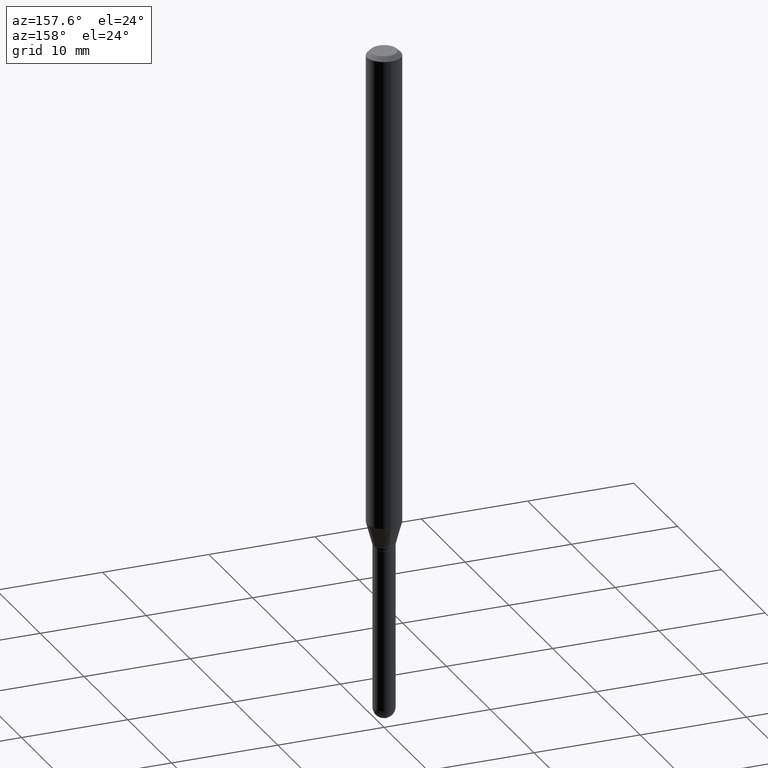
[diagram: clean part render]
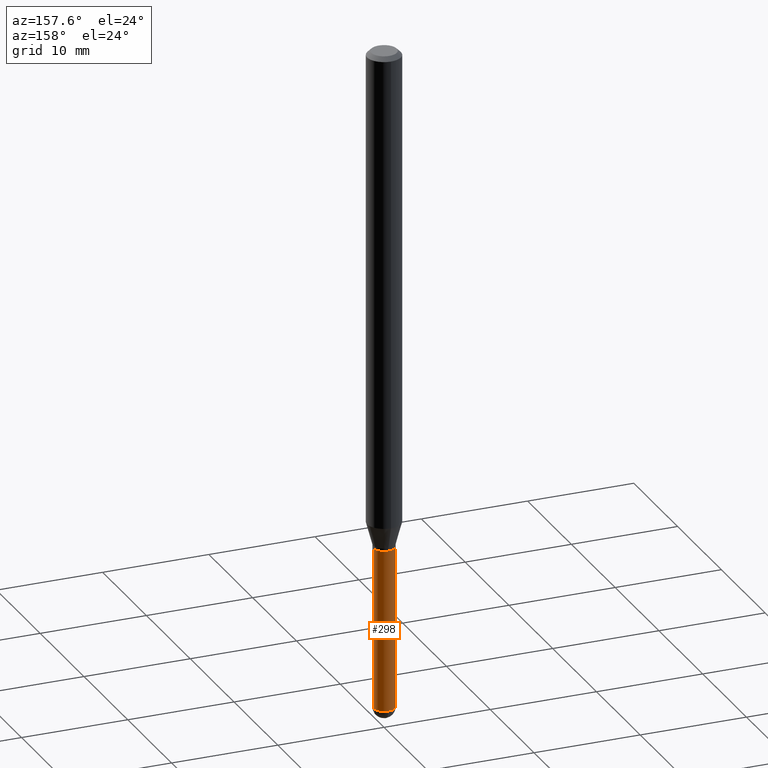
[diagram: same view with one face highlighted and labeled with its STEP entity id]
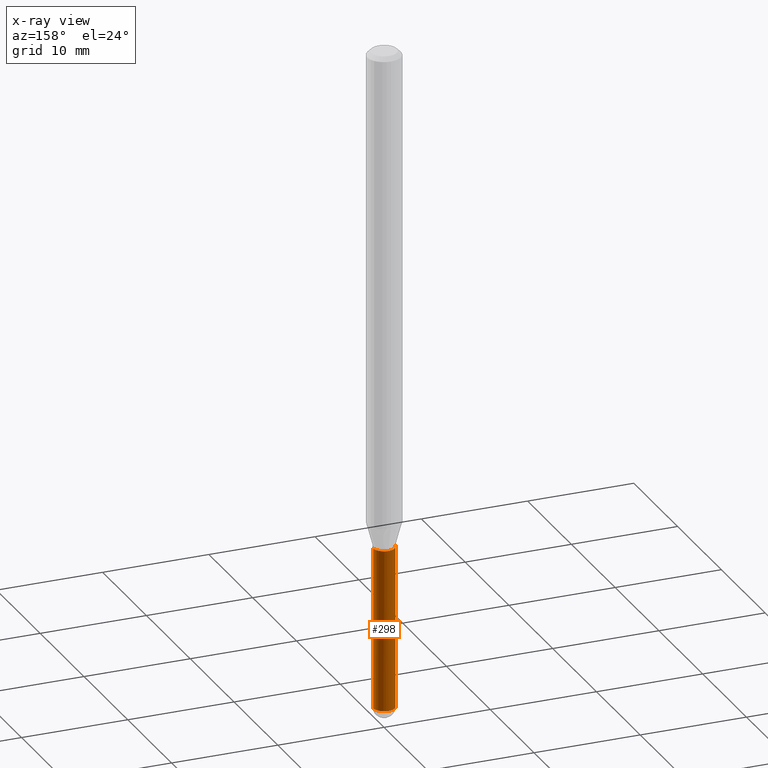
[diagram: x-ray of the same camera — body ghosted, the highlighted face saturated]
A machine part, auxiliary view. The second image highlights one B-rep face of the part: STEP entity #298.
The next image is the same camera in x-ray: the body ghosted, the highlighted face saturated — about 0% of this face is hidden behind the body in this view.
In plain terms, the highlighted cylindrical surface (edge-blend (fillet) strip) has radius 1.016 mm, axis along (-0, 0, 1).
Its self-contained STEP definition (entity closure, byte-faithful):
#2 = ORIENTED_EDGE ( 'NONE', *, *, #374, .T. ) ;
#8 = CIRCLE ( 'NONE', #195, 0.04000000000000000083 ) ;
#11 = VERTEX_POINT ( 'NONE', #37 ) ;
#12 = DIRECTION ( 'NONE',  ( -2.445468806185136597E-29, 3.491481338843145583E-15, 1.000000000000000000 ) ) ;
#17 = VERTEX_POINT ( 'NONE', #255 ) ;
#23 = EDGE_CURVE ( 'NONE', #122, #41, #184, .T. ) ;
#36 = EDGE_LOOP ( 'NONE', ( #2, #300, #311, #116, #121 ) ) ;
#37 = CARTESIAN_POINT ( 'NONE',  ( 0.04000000000000000083, -6.773473797355701271E-15, -1.860000000000000098 ) ) ;
#41 = VERTEX_POINT ( 'NONE', #165 ) ;
#47 = VECTOR ( 'NONE', #411, 39.37007874015748143 ) ;
#48 = VERTEX_POINT ( 'NONE', #126 ) ;
#66 = CIRCLE ( 'NONE', #386, 0.04000000000000000083 ) ;
#81 = EDGE_CURVE ( 'NONE', #122, #11, #467, .T. ) ;
#88 = CARTESIAN_POINT ( 'NONE',  ( 4.548571979504354361E-29, -6.494155290248250444E-15, -1.860000000000000098 ) ) ;
#90 = CARTESIAN_POINT ( 'NONE',  ( 6.015853263215436432E-29, -8.589044093554138346E-15, -2.459999999999999964 ) ) ;
#109 = CARTESIAN_POINT ( 'NONE',  ( 0.000000000000000000, 0.000000000000000000, 0.000000000000000000 ) ) ;
#111 = VECTOR ( 'NONE', #232, 39.37007874015748143 ) ;
#116 = ORIENTED_EDGE ( 'NONE', *, *, #81, .F. ) ;
#121 = ORIENTED_EDGE ( 'NONE', *, *, #23, .T. ) ;
#122 = VERTEX_POINT ( 'NONE', #230 ) ;
#126 = CARTESIAN_POINT ( 'NONE',  ( -0.04000000000000000083, -7.257382597597153280E-15, -2.459999999999999964 ) ) ;
#138 = CYLINDRICAL_SURFACE ( 'NONE', #376, 0.04000000000000000083 ) ;
#165 = CARTESIAN_POINT ( 'NONE',  ( 2.793185071075110754E-16, 0.03999999999999144518, -2.460000000000000409 ) ) ;
#184 = CIRCLE ( 'NONE', #352, 0.04000000000000000083 ) ;
#190 = DIRECTION ( 'NONE',  ( 1.000000000000000000, -6.982962677686259611E-15, 0.000000000000000000 ) ) ;
#195 = AXIS2_PLACEMENT_3D ( 'NONE', #90, #12, #244 ) ;
#228 = EDGE_CURVE ( 'NONE', #11, #17, #66, .T. ) ;
#230 = CARTESIAN_POINT ( 'NONE',  ( 0.04000000000000000083, -7.820918199008643644E-15, -2.459999999999999964 ) ) ;
#232 = DIRECTION ( 'NONE',  ( -2.445468806185136877E-29, 3.491481338843145188E-15, 1.000000000000000000 ) ) ;
#244 = DIRECTION ( 'NONE',  ( 1.000000000000000000, -6.982962677686259611E-15, 0.000000000000000000 ) ) ;
#255 = CARTESIAN_POINT ( 'NONE',  ( -0.04000000000000000083, -7.257382597597153280E-15, -1.860000000000000098 ) ) ;
#259 = DIRECTION ( 'NONE',  ( 1.000000000000000000, -6.982962677686265922E-15, 4.876176775795935793E-29 ) ) ;
#298 = ADVANCED_FACE ( 'NONE', ( #332 ), #138, .T. ) ;
#300 = ORIENTED_EDGE ( 'NONE', *, *, #389, .T. ) ;
#301 = CARTESIAN_POINT ( 'NONE',  ( 0.04000000000000000083, -2.793185071074506290E-16, 1.950470710318374387E-30 ) ) ;
#311 = ORIENTED_EDGE ( 'NONE', *, *, #228, .F. ) ;
#332 = FACE_OUTER_BOUND ( 'NONE', #36, .T. ) ;
#338 = DIRECTION ( 'NONE',  ( -2.445468806185136597E-29, 3.491481338843145583E-15, 1.000000000000000000 ) ) ;
#342 = CARTESIAN_POINT ( 'NONE',  ( -0.04000000000000000083, 2.842170943040400803E-16, -1.967574036101962509E-30 ) ) ;
#352 = AXIS2_PLACEMENT_3D ( 'NONE', #371, #338, #501 ) ;
#356 = LINE ( 'NONE', #342, #47 ) ;
#371 = CARTESIAN_POINT ( 'NONE',  ( 6.015853263215436432E-29, -8.589044093554138346E-15, -2.459999999999999964 ) ) ;
#374 = EDGE_CURVE ( 'NONE', #41, #48, #8, .T. ) ;
#376 = AXIS2_PLACEMENT_3D ( 'NONE', #109, #413, #259 ) ;
#386 = AXIS2_PLACEMENT_3D ( 'NONE', #88, #426, #190 ) ;
#389 = EDGE_CURVE ( 'NONE', #48, #17, #356, .T. ) ;
#411 = DIRECTION ( 'NONE',  ( -2.445468806185136877E-29, 3.491481338843145188E-15, 1.000000000000000000 ) ) ;
#413 = DIRECTION ( 'NONE',  ( -2.445468806185136597E-29, 3.491481338843145583E-15, 1.000000000000000000 ) ) ;
#426 = DIRECTION ( 'NONE',  ( -2.445468806185136597E-29, 3.491481338843145583E-15, 1.000000000000000000 ) ) ;
#467 = LINE ( 'NONE', #301, #111 ) ;
#501 = DIRECTION ( 'NONE',  ( 1.000000000000000000, -6.982962677686259611E-15, 0.000000000000000000 ) ) ;